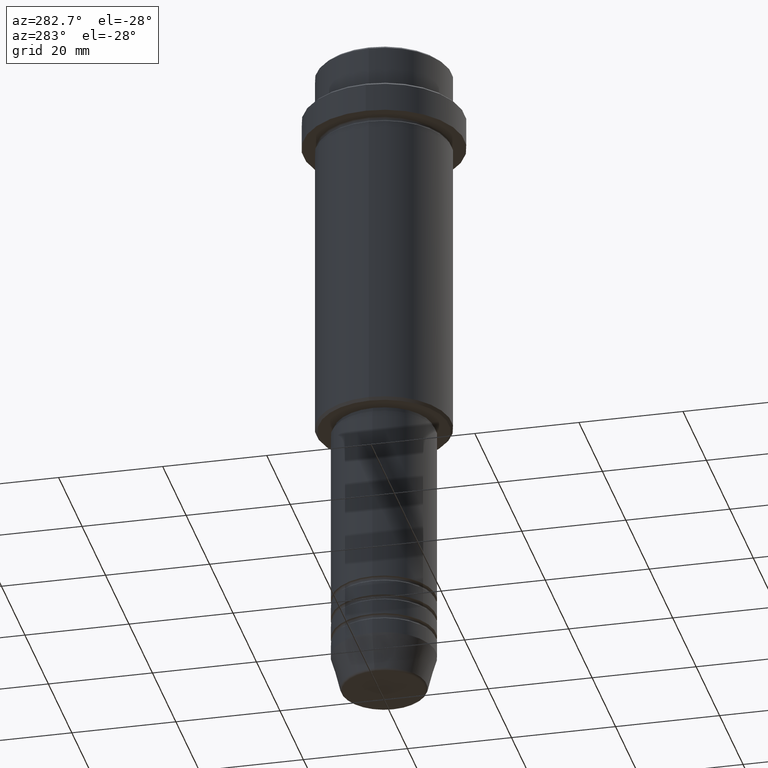
[diagram: clean part render]
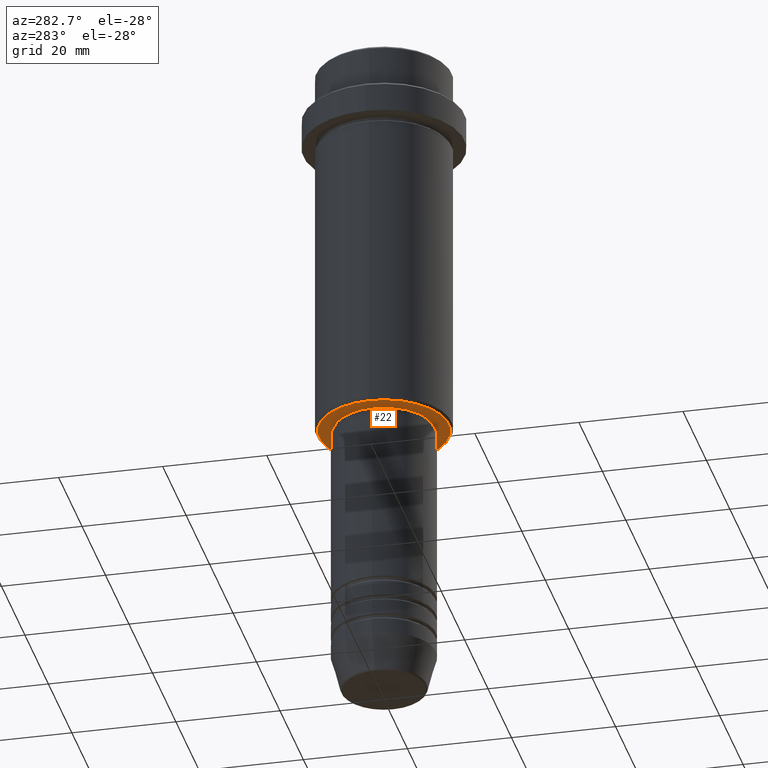
[diagram: same view with one face highlighted and labeled with its STEP entity id]
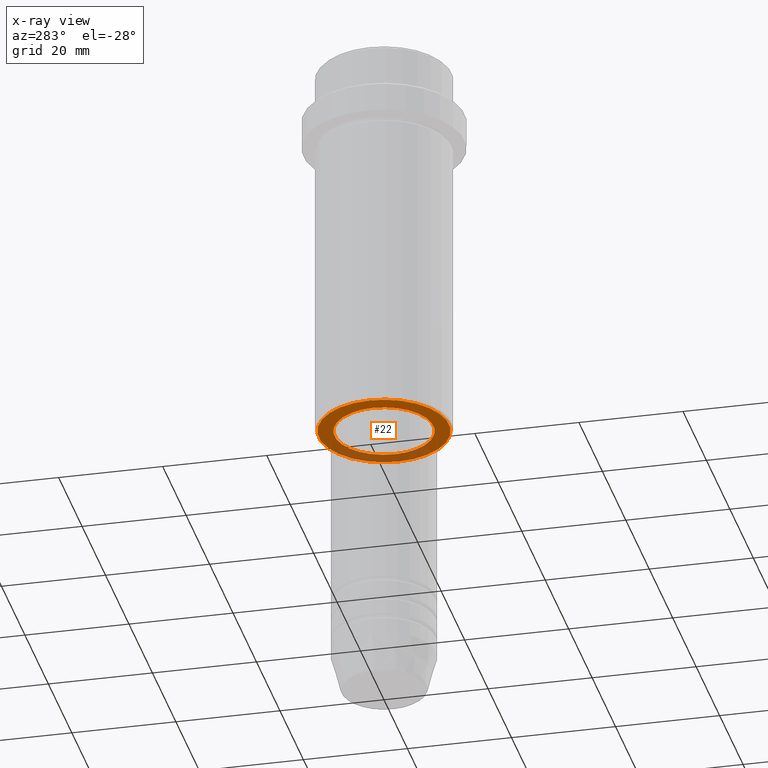
[diagram: x-ray of the same camera — body ghosted, the highlighted face saturated]
A machine part, auxiliary view. The second image highlights one B-rep face of the part: STEP entity #22.
The next image is the same camera in x-ray: the body ghosted, the highlighted face saturated — about 27% of this face is hidden behind the body in this view.
In plain terms, the highlighted planar face has unit normal (0, 0, -1).
Its self-contained STEP definition (entity closure, byte-faithful):
#22 = ADVANCED_FACE ( 'NONE', ( #269, #1237 ), #261, .T. ) ;
#94 = EDGE_CURVE ( 'NONE', #791, #363, #1339, .T. ) ;
#116 = ORIENTED_EDGE ( 'NONE', *, *, #94, .T. ) ;
#136 = DIRECTION ( 'NONE',  ( -0.000000000000000000, -0.000000000000000000, 1.000000000000000000 ) ) ;
#261 = PLANE ( 'NONE',  #476 ) ;
#269 = FACE_OUTER_BOUND ( 'NONE', #880, .T. ) ;
#320 = CARTESIAN_POINT ( 'NONE',  ( 0.000000000000000000, 0.000000000000000000, -75.00000000000001421 ) ) ;
#333 = CIRCLE ( 'NONE', #700, 12.50000000000001066 ) ;
#363 = VERTEX_POINT ( 'NONE', #471 ) ;
#364 = AXIS2_PLACEMENT_3D ( 'NONE', #996, #1227, #986 ) ;
#389 = EDGE_LOOP ( 'NONE', ( #116, #937 ) ) ;
#422 = DIRECTION ( 'NONE',  ( -0.000000000000000000, -0.000000000000000000, 1.000000000000000000 ) ) ;
#437 = EDGE_CURVE ( 'NONE', #554, #623, #333, .T. ) ;
#471 = CARTESIAN_POINT ( 'NONE',  ( -9.499999999999996447, 1.163414459189985091E-15, -75.00000000000001421 ) ) ;
#476 = AXIS2_PLACEMENT_3D ( 'NONE', #694, #671, #1327 ) ;
#486 = CARTESIAN_POINT ( 'NONE',  ( 9.499999999999996447, 0.000000000000000000, -75.00000000000001421 ) ) ;
#554 = VERTEX_POINT ( 'NONE', #1074 ) ;
#623 = VERTEX_POINT ( 'NONE', #970 ) ;
#635 = CIRCLE ( 'NONE', #1088, 9.499999999999996447 ) ;
#638 = DIRECTION ( 'NONE',  ( 1.000000000000000000, 0.000000000000000000, 0.000000000000000000 ) ) ;
#653 = AXIS2_PLACEMENT_3D ( 'NONE', #320, #422, #638 ) ;
#671 = DIRECTION ( 'NONE',  ( 0.000000000000000000, 0.000000000000000000, -1.000000000000000000 ) ) ;
#678 = CARTESIAN_POINT ( 'NONE',  ( 0.000000000000000000, 0.000000000000000000, -75.00000000000001421 ) ) ;
#694 = CARTESIAN_POINT ( 'NONE',  ( 0.000000000000000000, 13.00000000000000000, -75.00000000000001421 ) ) ;
#700 = AXIS2_PLACEMENT_3D ( 'NONE', #725, #1156, #950 ) ;
#725 = CARTESIAN_POINT ( 'NONE',  ( 0.000000000000000000, 0.000000000000000000, -75.00000000000001421 ) ) ;
#791 = VERTEX_POINT ( 'NONE', #486 ) ;
#880 = EDGE_LOOP ( 'NONE', ( #1254, #1107 ) ) ;
#937 = ORIENTED_EDGE ( 'NONE', *, *, #1153, .T. ) ;
#950 = DIRECTION ( 'NONE',  ( -1.000000000000000000, 0.000000000000000000, 0.000000000000000000 ) ) ;
#970 = CARTESIAN_POINT ( 'NONE',  ( -12.50000000000001066, 1.561424668912876097E-15, -75.00000000000001421 ) ) ;
#986 = DIRECTION ( 'NONE',  ( -1.000000000000000000, 0.000000000000000000, 0.000000000000000000 ) ) ;
#996 = CARTESIAN_POINT ( 'NONE',  ( 0.000000000000000000, 0.000000000000000000, -75.00000000000001421 ) ) ;
#1010 = DIRECTION ( 'NONE',  ( 1.000000000000000000, 0.000000000000000000, 0.000000000000000000 ) ) ;
#1074 = CARTESIAN_POINT ( 'NONE',  ( 12.50000000000001066, 0.000000000000000000, -75.00000000000001421 ) ) ;
#1088 = AXIS2_PLACEMENT_3D ( 'NONE', #678, #136, #1010 ) ;
#1107 = ORIENTED_EDGE ( 'NONE', *, *, #1166, .T. ) ;
#1153 = EDGE_CURVE ( 'NONE', #363, #791, #635, .T. ) ;
#1156 = DIRECTION ( 'NONE',  ( 0.000000000000000000, 0.000000000000000000, -1.000000000000000000 ) ) ;
#1166 = EDGE_CURVE ( 'NONE', #623, #554, #1226, .T. ) ;
#1226 = CIRCLE ( 'NONE', #364, 12.50000000000001066 ) ;
#1227 = DIRECTION ( 'NONE',  ( 0.000000000000000000, 0.000000000000000000, -1.000000000000000000 ) ) ;
#1237 = FACE_BOUND ( 'NONE', #389, .T. ) ;
#1254 = ORIENTED_EDGE ( 'NONE', *, *, #437, .T. ) ;
#1327 = DIRECTION ( 'NONE',  ( -1.000000000000000000, 0.000000000000000000, -0.000000000000000000 ) ) ;
#1339 = CIRCLE ( 'NONE', #653, 9.499999999999996447 ) ;